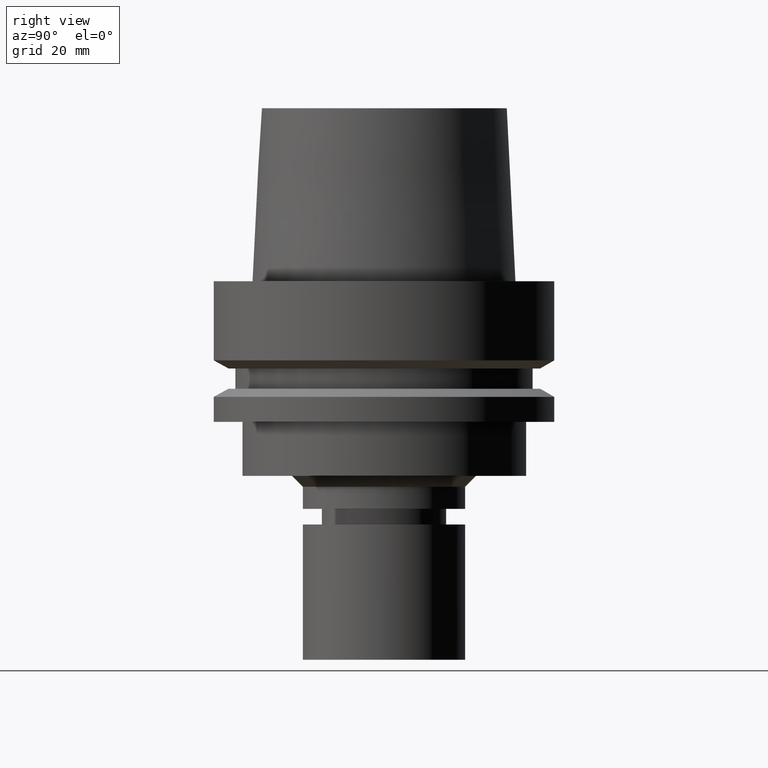
[diagram: clean part render]
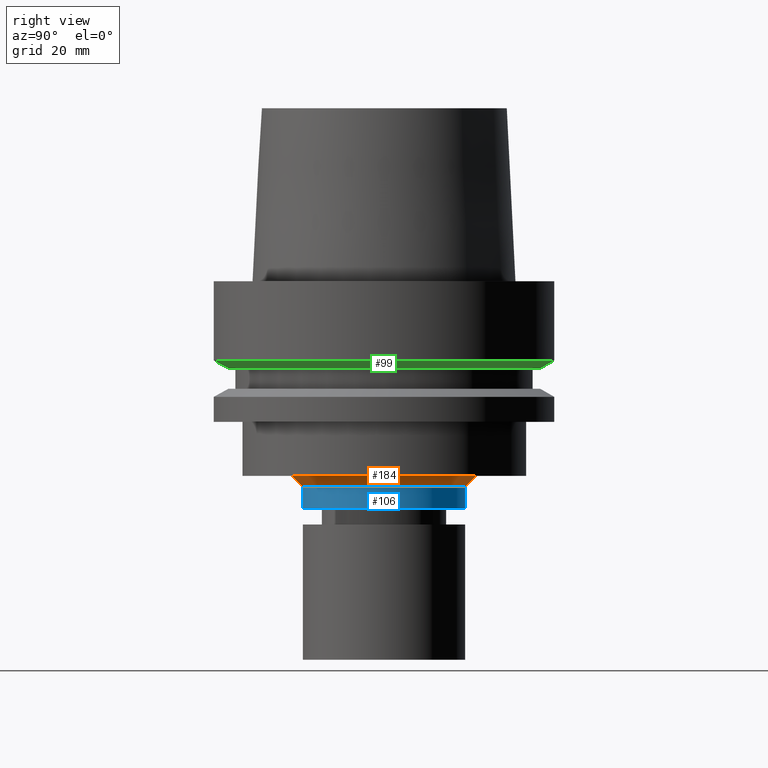
[diagram: same view with three faces highlighted in distinct colors, each labeled with its STEP entity id]
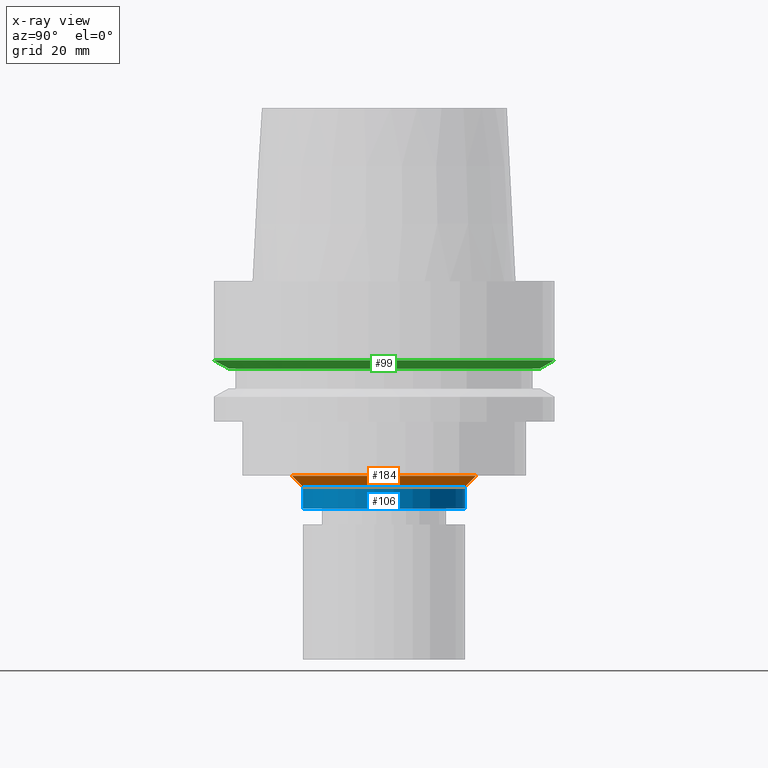
[diagram: x-ray of the same camera — body ghosted, the three highlighted faces saturated]
A machine part, right view with three faces highlighted in distinct colors.
The next image is the same camera in x-ray (body ghosted, the three faces saturated) — at least one of them is partly hidden behind the body in this view.
Their STEP definitions:

[orange] entity #184 — the highlighted conical surface has half-angle 45 deg.
#110=EDGE_CURVE('Unnamed[1]',#266,#266,#267,.T.);
#118=EDGE_CURVE('Unnamed[1]',#278,#278,#279,.T.);
#184=ADVANCED_FACE('Unnamed[1]',(#379,#380),#381,.T.);
#266=VERTEX_POINT('',#476);
#267=CIRCLE('',#477,15.0);
#278=VERTEX_POINT('',#492);
#279=CIRCLE('',#493,17.0);
#379=FACE_BOUND('',#618,.T.);
#380=FACE_BOUND('',#619,.T.);
#381=CONICAL_SURFACE('',#620,16.0,0.785398163397448);
#476=CARTESIAN_POINT('',(2.32682891837997E-015,15.0,-38.0));
#477=AXIS2_PLACEMENT_3D('',#703,#704,#705);
#492=CARTESIAN_POINT('',(2.20436423846524E-015,17.0,-36.0));
#493=AXIS2_PLACEMENT_3D('',#715,#716,#717);
#618=EDGE_LOOP('',(#826));
#619=EDGE_LOOP('',(#827));
#620=AXIS2_PLACEMENT_3D('',#828,#829,#830);
#703=CARTESIAN_POINT('',(2.32682891837997E-015,4.65365783675994E-015,-38.0));
#704=DIRECTION('',(-6.12323399573677E-017,-1.22464679914747E-016,1.0));
#705=DIRECTION('',(-1.23259516440783E-032,1.0,1.22464679914747E-016));
#715=CARTESIAN_POINT('',(2.20436423846524E-015,4.40872847693047E-015,-36.0));
#716=DIRECTION('',(-6.12323399573676E-017,-1.22464679914725E-016,1.0));
#717=DIRECTION('',(-1.23259516440783E-032,1.0,1.22464679914725E-016));
#826=ORIENTED_EDGE('',*,*,#118,.F.);
#827=ORIENTED_EDGE('',*,*,#110,.T.);
#828=CARTESIAN_POINT('',(2.2655965784226E-015,4.53119315684521E-015,-37.0));
#829=DIRECTION('',(-6.12323399573677E-017,-1.2246467991476E-016,1.0));
#830=DIRECTION('',(-1.23259516440783E-032,1.0,1.2246467991476E-016));

[blue] entity #106 — the highlighted cylindrical surface (bore or boss wall) has radius 15 mm, axis along (-0, -0, 1).
#106=ADVANCED_FACE('Unnamed[1]',(#259,#260),#261,.T.);
#108=EDGE_CURVE('Unnamed[1]',#263,#263,#264,.T.);
#110=EDGE_CURVE('Unnamed[1]',#266,#266,#267,.T.);
#259=FACE_BOUND('',#467,.T.);
#260=FACE_BOUND('',#468,.T.);
#261=CYLINDRICAL_SURFACE('',#469,15.0);
#263=VERTEX_POINT('',#472);
#264=CIRCLE('',#473,15.0);
#266=VERTEX_POINT('',#476);
#267=CIRCLE('',#477,15.0);
#467=EDGE_LOOP('',(#695));
#468=EDGE_LOOP('',(#696));
#469=AXIS2_PLACEMENT_3D('',#697,#698,#699);
#472=CARTESIAN_POINT('',(2.57788151921109E-015,15.0,-42.1000001144153));
#473=AXIS2_PLACEMENT_3D('',#700,#701,#702);
#476=CARTESIAN_POINT('',(2.32682891837997E-015,15.0,-38.0));
#477=AXIS2_PLACEMENT_3D('',#703,#704,#705);
#695=ORIENTED_EDGE('',*,*,#110,.F.);
#696=ORIENTED_EDGE('',*,*,#108,.T.);
#697=CARTESIAN_POINT('',(2.45235521879553E-015,4.90471043759106E-015,-40.0500000572076));
#698=DIRECTION('',(-6.12323399573677E-017,-1.22464679914747E-016,1.0));
#699=DIRECTION('',(-1.23259516440783E-032,1.0,1.22464679914747E-016));
#700=CARTESIAN_POINT('',(2.57788151921109E-015,5.15576303842218E-015,-42.1000001144152));
#701=DIRECTION('',(-6.12323399573677E-017,-1.22464679914747E-016,1.0));
#702=DIRECTION('',(-1.23259516440783E-032,1.0,1.22464679914747E-016));
#703=CARTESIAN_POINT('',(2.32682891837997E-015,4.65365783675994E-015,-38.0));
#704=DIRECTION('',(-6.12323399573677E-017,-1.22464679914747E-016,1.0));
#705=DIRECTION('',(-1.23259516440783E-032,1.0,1.22464679914747E-016));

[green] entity #99 — the highlighted conical surface has half-angle 60 deg.
#99=ADVANCED_FACE('Unnamed[1]',(#248,#249),#250,.T.);
#181=EDGE_CURVE('Unnamed[1]',#375,#375,#376,.T.);
#195=EDGE_CURVE('Unnamed[1]',#398,#398,#399,.T.);
#248=FACE_BOUND('',#453,.T.);
#249=FACE_BOUND('',#454,.T.);
#250=CONICAL_SURFACE('',#455,30.1987976320959,1.04719755119657);
#375=VERTEX_POINT('',#613);
#376=CIRCLE('',#614,28.8975952641919);
#398=VERTEX_POINT('',#641);
#399=CIRCLE('',#642,31.5);
#453=EDGE_LOOP('',(#683));
#454=EDGE_LOOP('',(#684));
#455=AXIS2_PLACEMENT_3D('',#685,#686,#687);
#613=CARTESIAN_POINT('',(9.87371481812551E-016,28.8975952641919,-16.125));
#614=AXIS2_PLACEMENT_3D('',#822,#823,#824);
#641=CARTESIAN_POINT('',(8.95369947681261E-016,31.5,-14.6225009252407));
#642=AXIS2_PLACEMENT_3D('',#849,#850,#851);
#683=ORIENTED_EDGE('',*,*,#195,.F.);
#684=ORIENTED_EDGE('',*,*,#181,.T.);
#685=CARTESIAN_POINT('',(9.41370714746907E-016,1.88274142949381E-015,-15.3737504626203));
#686=DIRECTION('',(-6.12323399573677E-017,-1.22464679914731E-016,1.0));
#687=DIRECTION('',(-1.23259516440784E-032,1.0,1.22464679914731E-016));
#822=CARTESIAN_POINT('',(9.87371481812552E-016,1.9747429636251E-015,-16.125));
#823=DIRECTION('',(-6.12323399573677E-017,-1.22464679914745E-016,1.0));
#824=DIRECTION('',(-1.23259516440785E-032,1.0,1.22464679914745E-016));
#849=CARTESIAN_POINT('',(8.95369947681262E-016,1.79073989536252E-015,-14.6225009252407));
#850=DIRECTION('',(-6.12323399573677E-017,-1.22464679914719E-016,1.0));
#851=DIRECTION('',(-1.23259516440783E-032,1.0,1.22464679914719E-016));